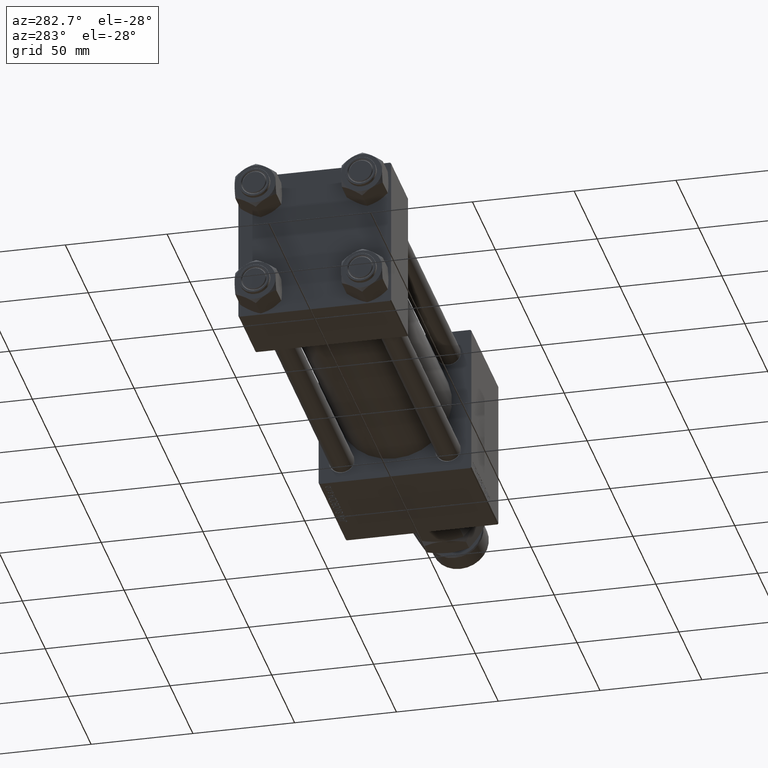
[diagram: clean part render]
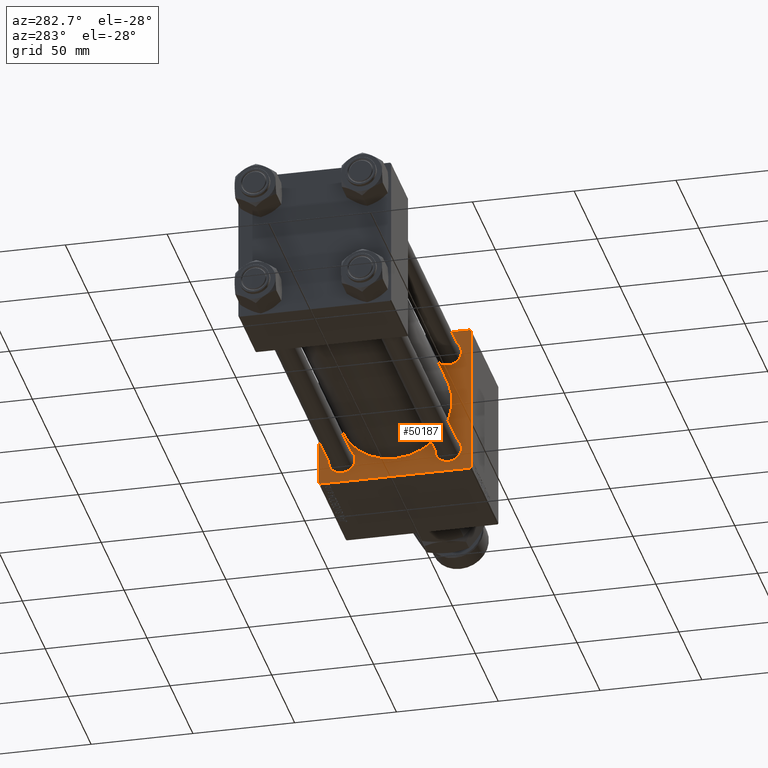
[diagram: same view with one face highlighted and labeled with its STEP entity id]
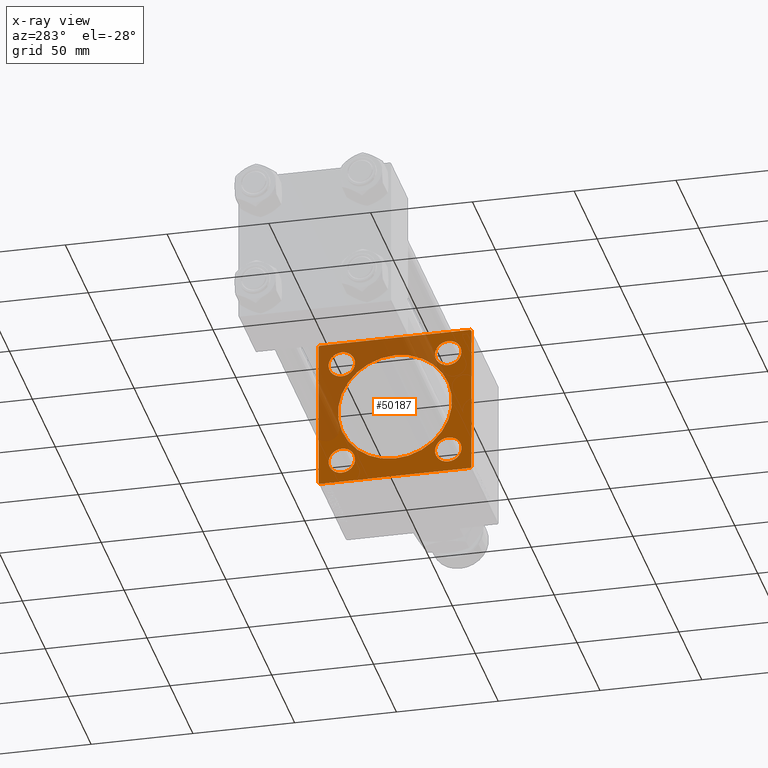
[diagram: x-ray of the same camera — body ghosted, the highlighted face saturated]
A machine part, auxiliary view. The second image highlights one B-rep face of the part: STEP entity #50187.
The next image is the same camera in x-ray: the body ghosted, the highlighted face saturated — about 38% of this face is hidden behind the body in this view.
In plain terms, the highlighted planar face has unit normal (-1, 0, 0).
Its self-contained STEP definition (entity closure, byte-faithful):
#744 = FACE_BOUND ( 'NONE', #46339, .T. ) ;
#1229 = DIRECTION ( 'NONE',  ( 1.000000000000000000, 0.000000000000000000, 0.000000000000000000 ) ) ;
#1258 = DIRECTION ( 'NONE',  ( 0.000000000000000000, 0.000000000000000000, 1.000000000000000000 ) ) ;
#1579 = CARTESIAN_POINT ( 'NONE',  ( 175.0000000000000284, 37.50000000000000000, -37.50000000000000000 ) ) ;
#1678 = DIRECTION ( 'NONE',  ( 0.000000000000000000, 0.000000000000000000, -1.000000000000000000 ) ) ;
#1789 = VECTOR ( 'NONE', #27414, 1000.000000000000000 ) ;
#1898 = VERTEX_POINT ( 'NONE', #45320 ) ;
#2136 = EDGE_CURVE ( 'NONE', #14635, #37250, #11148, .T. ) ;
#2279 = DIRECTION ( 'NONE',  ( 1.000000000000000000, 0.000000000000000000, -0.000000000000000000 ) ) ;
#2577 = CARTESIAN_POINT ( 'NONE',  ( 175.0000000000000284, 37.50000000000000000, -37.00000000000002132 ) ) ;
#2635 = CARTESIAN_POINT ( 'NONE',  ( 175.0000000000000284, 26.14999999999999858, 19.64999999999999147 ) ) ;
#2747 = VERTEX_POINT ( 'NONE', #20896 ) ;
#2760 = CARTESIAN_POINT ( 'NONE',  ( 175.0000000000000284, -26.14999999999999147, -32.65000000000002700 ) ) ;
#4355 = VECTOR ( 'NONE', #32753, 1000.000000000000000 ) ;
#4941 = VECTOR ( 'NONE', #34669, 1000.000000000000000 ) ;
#5462 = EDGE_CURVE ( 'NONE', #48854, #29566, #29818, .T. ) ;
#5471 = FACE_BOUND ( 'NONE', #32989, .T. ) ;
#5518 = LINE ( 'NONE', #20590, #52096 ) ;
#5666 = CARTESIAN_POINT ( 'NONE',  ( 175.0000000000000284, -26.14999999999999147, -19.64999999999999503 ) ) ;
#6500 = DIRECTION ( 'NONE',  ( 0.000000000000000000, 0.000000000000000000, 1.000000000000000000 ) ) ;
#6659 = AXIS2_PLACEMENT_3D ( 'NONE', #26437, #41972, #26950 ) ;
#7054 = AXIS2_PLACEMENT_3D ( 'NONE', #45271, #1229, #17329 ) ;
#7234 = CIRCLE ( 'NONE', #51019, 6.500000000000015987 ) ;
#8729 = ORIENTED_EDGE ( 'NONE', *, *, #19346, .F. ) ;
#8912 = DIRECTION ( 'NONE',  ( 1.000000000000000000, 0.000000000000000000, -0.000000000000000000 ) ) ;
#9000 = CARTESIAN_POINT ( 'NONE',  ( 175.0000000000000284, 37.24999999999922551, -37.25000000000078160 ) ) ;
#9175 = DIRECTION ( 'NONE',  ( 1.000000000000000000, 0.000000000000000000, -0.000000000000000000 ) ) ;
#9485 = ORIENTED_EDGE ( 'NONE', *, *, #20963, .T. ) ;
#9548 = CARTESIAN_POINT ( 'NONE',  ( 175.0000000000000284, -37.25000000000103739, -37.24999999999896971 ) ) ;
#9691 = CARTESIAN_POINT ( 'NONE',  ( 175.0000000000000284, 26.14999999999999858, -26.15000000000000213 ) ) ;
#10067 = LINE ( 'NONE', #9548, #21657 ) ;
#10426 = EDGE_CURVE ( 'NONE', #2747, #31884, #13564, .T. ) ;
#10657 = EDGE_CURVE ( 'NONE', #1898, #44416, #7234, .T. ) ;
#11148 = CIRCLE ( 'NONE', #19567, 6.500000000000015987 ) ;
#12067 = CARTESIAN_POINT ( 'NONE',  ( 175.0000000000000284, -37.50000000000000711, -36.99999999999997868 ) ) ;
#12895 = CARTESIAN_POINT ( 'NONE',  ( 175.0000000000000284, 0.000000000000000000, 0.000000000000000000 ) ) ;
#12966 = DIRECTION ( 'NONE',  ( 0.000000000000000000, -9.251858538542972814E-17, -1.000000000000000000 ) ) ;
#13388 = DIRECTION ( 'NONE',  ( 0.000000000000000000, 0.000000000000000000, 1.000000000000000000 ) ) ;
#13480 = LINE ( 'NONE', #9000, #4355 ) ;
#13564 = LINE ( 'NONE', #22002, #24076 ) ;
#13703 = VERTEX_POINT ( 'NONE', #5666 ) ;
#14635 = VERTEX_POINT ( 'NONE', #48361 ) ;
#14713 = VERTEX_POINT ( 'NONE', #37052 ) ;
#15942 = CIRCLE ( 'NONE', #37020, 6.500000000000015987 ) ;
#16015 = DIRECTION ( 'NONE',  ( 0.000000000000000000, 0.000000000000000000, 1.000000000000000000 ) ) ;
#16032 = EDGE_CURVE ( 'NONE', #34084, #44045, #10067, .T. ) ;
#16688 = DIRECTION ( 'NONE',  ( 0.000000000000000000, 0.000000000000000000, 1.000000000000000000 ) ) ;
#17291 = EDGE_LOOP ( 'NONE', ( #48781, #42521, #19336, #50539, #8729, #33054, #28297, #44016 ) ) ;
#17329 = DIRECTION ( 'NONE',  ( 0.000000000000000000, 0.000000000000000000, -1.000000000000000000 ) ) ;
#17397 = DIRECTION ( 'NONE',  ( 1.000000000000000000, 0.000000000000000000, -0.000000000000000000 ) ) ;
#17424 = CARTESIAN_POINT ( 'NONE',  ( 175.0000000000000284, -37.50000000000000000, 37.49999999999997868 ) ) ;
#18445 = CARTESIAN_POINT ( 'NONE',  ( 175.0000000000000284, -26.14999999999999147, 26.15000000000000924 ) ) ;
#18516 = EDGE_LOOP ( 'NONE', ( #46303, #49891 ) ) ;
#19099 = DIRECTION ( 'NONE',  ( 1.000000000000000000, 0.000000000000000000, 0.000000000000000000 ) ) ;
#19336 = ORIENTED_EDGE ( 'NONE', *, *, #27789, .F. ) ;
#19346 = EDGE_CURVE ( 'NONE', #30717, #40705, #34135, .T. ) ;
#19567 = AXIS2_PLACEMENT_3D ( 'NONE', #32365, #24707, #16015 ) ;
#20384 = CARTESIAN_POINT ( 'NONE',  ( 175.0000000000000284, -26.14999999999999147, 26.15000000000000924 ) ) ;
#20567 = ORIENTED_EDGE ( 'NONE', *, *, #39134, .T. ) ;
#20590 = CARTESIAN_POINT ( 'NONE',  ( 175.0000000000000284, -37.24999999999896261, 37.25000000000102318 ) ) ;
#20684 = EDGE_CURVE ( 'NONE', #30030, #40705, #5518, .T. ) ;
#20896 = CARTESIAN_POINT ( 'NONE',  ( 175.0000000000000284, 37.50000000000000000, 36.99999999999999289 ) ) ;
#20963 = EDGE_CURVE ( 'NONE', #30691, #30832, #36017, .T. ) ;
#21046 = CARTESIAN_POINT ( 'NONE',  ( 175.0000000000000284, 26.14999999999999858, 26.15000000000000213 ) ) ;
#21053 = EDGE_CURVE ( 'NONE', #34942, #13703, #34324, .T. ) ;
#21110 = DIRECTION ( 'NONE',  ( -0.000000000000000000, 0.7071067811865671127, 0.7071067811865279218 ) ) ;
#21209 = EDGE_LOOP ( 'NONE', ( #25949, #49008 ) ) ;
#21534 = ORIENTED_EDGE ( 'NONE', *, *, #21610, .T. ) ;
#21610 = EDGE_CURVE ( 'NONE', #13703, #34942, #32694, .T. ) ;
#21657 = VECTOR ( 'NONE', #42229, 1000.000000000000000 ) ;
#22002 = CARTESIAN_POINT ( 'NONE',  ( 175.0000000000000284, 37.50000000000000000, 37.49999999999999289 ) ) ;
#23453 = CARTESIAN_POINT ( 'NONE',  ( 175.0000000000000284, -37.50000000000000000, 37.00000000000000711 ) ) ;
#24076 = VECTOR ( 'NONE', #1678, 1000.000000000000000 ) ;
#24549 = VECTOR ( 'NONE', #46671, 1000.000000000000000 ) ;
#24707 = DIRECTION ( 'NONE',  ( 1.000000000000000000, 0.000000000000000000, -0.000000000000000000 ) ) ;
#24888 = EDGE_CURVE ( 'NONE', #30832, #30691, #52129, .T. ) ;
#25263 = DIRECTION ( 'NONE',  ( 0.000000000000000000, 0.000000000000000000, 1.000000000000000000 ) ) ;
#25599 = AXIS2_PLACEMENT_3D ( 'NONE', #9691, #9175, #25263 ) ;
#25783 = FACE_BOUND ( 'NONE', #18516, .T. ) ;
#25949 = ORIENTED_EDGE ( 'NONE', *, *, #49643, .T. ) ;
#26006 = CIRCLE ( 'NONE', #36984, 28.00000000000000000 ) ;
#26437 = CARTESIAN_POINT ( 'NONE',  ( 175.0000000000000284, 26.14999999999999858, 26.15000000000000213 ) ) ;
#26910 = CARTESIAN_POINT ( 'NONE',  ( 175.0000000000000284, 37.25000000000103739, 37.24999999999896971 ) ) ;
#26950 = DIRECTION ( 'NONE',  ( 0.000000000000000000, 0.000000000000000000, 1.000000000000000000 ) ) ;
#27414 = DIRECTION ( 'NONE',  ( 0.000000000000000000, 0.7071067811865279218, -0.7071067811865671127 ) ) ;
#27789 = EDGE_CURVE ( 'NONE', #30030, #44045, #49588, .T. ) ;
#27880 = ORIENTED_EDGE ( 'NONE', *, *, #2136, .T. ) ;
#28297 = ORIENTED_EDGE ( 'NONE', *, *, #10426, .T. ) ;
#28400 = EDGE_LOOP ( 'NONE', ( #42567, #9485 ) ) ;
#28434 = DIRECTION ( 'NONE',  ( 0.000000000000000000, 0.000000000000000000, 1.000000000000000000 ) ) ;
#29304 = CARTESIAN_POINT ( 'NONE',  ( 175.0000000000000284, -37.00000000000000000, 37.49999999999997868 ) ) ;
#29566 = VERTEX_POINT ( 'NONE', #41995 ) ;
#29818 = CIRCLE ( 'NONE', #7054, 28.00000000000000000 ) ;
#29913 = EDGE_CURVE ( 'NONE', #14713, #34084, #37485, .T. ) ;
#29981 = ORIENTED_EDGE ( 'NONE', *, *, #21053, .T. ) ;
#30030 = VERTEX_POINT ( 'NONE', #23453 ) ;
#30035 = EDGE_CURVE ( 'NONE', #30717, #2747, #35090, .T. ) ;
#30098 = CARTESIAN_POINT ( 'NONE',  ( 175.0000000000000284, 37.00000000000002842, 37.49999999999999289 ) ) ;
#30691 = VERTEX_POINT ( 'NONE', #2635 ) ;
#30699 = CIRCLE ( 'NONE', #25599, 6.500000000000015987 ) ;
#30717 = VERTEX_POINT ( 'NONE', #30098 ) ;
#30832 = VERTEX_POINT ( 'NONE', #51920 ) ;
#31002 = AXIS2_PLACEMENT_3D ( 'NONE', #32657, #37649, #28434 ) ;
#31165 = AXIS2_PLACEMENT_3D ( 'NONE', #12895, #37414, #1258 ) ;
#31341 = CARTESIAN_POINT ( 'NONE',  ( 175.0000000000000284, -2.602085213965210642E-15, 28.00000000000000000 ) ) ;
#31884 = VERTEX_POINT ( 'NONE', #2577 ) ;
#32365 = CARTESIAN_POINT ( 'NONE',  ( 175.0000000000000284, 26.14999999999999858, -26.15000000000000213 ) ) ;
#32657 = CARTESIAN_POINT ( 'NONE',  ( 175.0000000000000284, -26.14999999999999147, -26.15000000000000924 ) ) ;
#32694 = CIRCLE ( 'NONE', #31002, 6.500000000000015987 ) ;
#32753 = DIRECTION ( 'NONE',  ( -0.000000000000000000, -0.7071067811865622277, -0.7071067811865328068 ) ) ;
#32989 = EDGE_LOOP ( 'NONE', ( #21534, #29981 ) ) ;
#33054 = ORIENTED_EDGE ( 'NONE', *, *, #30035, .T. ) ;
#34084 = VERTEX_POINT ( 'NONE', #46793 ) ;
#34135 = LINE ( 'NONE', #51225, #4941 ) ;
#34216 = CARTESIAN_POINT ( 'NONE',  ( 175.0000000000000284, -26.14999999999999147, -26.15000000000000924 ) ) ;
#34324 = CIRCLE ( 'NONE', #47762, 6.500000000000015987 ) ;
#34548 = DIRECTION ( 'NONE',  ( 0.000000000000000000, 0.000000000000000000, 1.000000000000000000 ) ) ;
#34583 = EDGE_CURVE ( 'NONE', #31884, #14713, #13480, .T. ) ;
#34669 = DIRECTION ( 'NONE',  ( 0.000000000000000000, -1.000000000000000000, -1.850371707708594316E-16 ) ) ;
#34942 = VERTEX_POINT ( 'NONE', #2760 ) ;
#35090 = LINE ( 'NONE', #26910, #1789 ) ;
#35127 = CARTESIAN_POINT ( 'NONE',  ( 175.0000000000000284, 26.14999999999999858, -19.64999999999998792 ) ) ;
#35463 = DIRECTION ( 'NONE',  ( 0.000000000000000000, 0.000000000000000000, -1.000000000000000000 ) ) ;
#36017 = CIRCLE ( 'NONE', #39387, 6.500000000000008882 ) ;
#36482 = DIRECTION ( 'NONE',  ( 1.000000000000000000, 0.000000000000000000, -0.000000000000000000 ) ) ;
#36984 = AXIS2_PLACEMENT_3D ( 'NONE', #51253, #19099, #35463 ) ;
#37020 = AXIS2_PLACEMENT_3D ( 'NONE', #18445, #17397, #34548 ) ;
#37052 = CARTESIAN_POINT ( 'NONE',  ( 175.0000000000000284, 37.00000000000000000, -37.50000000000000000 ) ) ;
#37159 = FACE_BOUND ( 'NONE', #28400, .T. ) ;
#37250 = VERTEX_POINT ( 'NONE', #35127 ) ;
#37414 = DIRECTION ( 'NONE',  ( -1.000000000000000000, -0.000000000000000000, 0.000000000000000000 ) ) ;
#37485 = LINE ( 'NONE', #1579, #24549 ) ;
#37649 = DIRECTION ( 'NONE',  ( 1.000000000000000000, 0.000000000000000000, -0.000000000000000000 ) ) ;
#37663 = FACE_BOUND ( 'NONE', #21209, .T. ) ;
#39134 = EDGE_CURVE ( 'NONE', #37250, #14635, #30699, .T. ) ;
#39387 = AXIS2_PLACEMENT_3D ( 'NONE', #21046, #8912, #13388 ) ;
#40705 = VERTEX_POINT ( 'NONE', #29304 ) ;
#41972 = DIRECTION ( 'NONE',  ( 1.000000000000000000, 0.000000000000000000, -0.000000000000000000 ) ) ;
#41995 = CARTESIAN_POINT ( 'NONE',  ( 175.0000000000000284, 8.269258236473784371E-16, -28.00000000000000000 ) ) ;
#42229 = DIRECTION ( 'NONE',  ( 0.000000000000000000, -0.7071067811865279218, 0.7071067811865671127 ) ) ;
#42521 = ORIENTED_EDGE ( 'NONE', *, *, #16032, .T. ) ;
#42567 = ORIENTED_EDGE ( 'NONE', *, *, #24888, .T. ) ;
#42998 = VECTOR ( 'NONE', #12966, 1000.000000000000000 ) ;
#43927 = EDGE_CURVE ( 'NONE', #29566, #48854, #26006, .T. ) ;
#44016 = ORIENTED_EDGE ( 'NONE', *, *, #34583, .T. ) ;
#44045 = VERTEX_POINT ( 'NONE', #12067 ) ;
#44416 = VERTEX_POINT ( 'NONE', #51805 ) ;
#45271 = CARTESIAN_POINT ( 'NONE',  ( 175.0000000000000284, -2.602085213965210642E-15, 0.000000000000000000 ) ) ;
#45320 = CARTESIAN_POINT ( 'NONE',  ( 175.0000000000000284, -26.14999999999999147, 19.64999999999999147 ) ) ;
#45555 = PLANE ( 'NONE',  #31165 ) ;
#46303 = ORIENTED_EDGE ( 'NONE', *, *, #5462, .T. ) ;
#46339 = EDGE_LOOP ( 'NONE', ( #20567, #27880 ) ) ;
#46671 = DIRECTION ( 'NONE',  ( 0.000000000000000000, -1.000000000000000000, 0.000000000000000000 ) ) ;
#46793 = CARTESIAN_POINT ( 'NONE',  ( 175.0000000000000284, -37.00000000000001421, -37.50000000000000000 ) ) ;
#47762 = AXIS2_PLACEMENT_3D ( 'NONE', #34216, #2279, #6500 ) ;
#48361 = CARTESIAN_POINT ( 'NONE',  ( 175.0000000000000284, 26.14999999999999858, -32.65000000000001990 ) ) ;
#48781 = ORIENTED_EDGE ( 'NONE', *, *, #29913, .T. ) ;
#48854 = VERTEX_POINT ( 'NONE', #31341 ) ;
#49008 = ORIENTED_EDGE ( 'NONE', *, *, #10657, .T. ) ;
#49516 = FACE_OUTER_BOUND ( 'NONE', #17291, .T. ) ;
#49588 = LINE ( 'NONE', #17424, #42998 ) ;
#49643 = EDGE_CURVE ( 'NONE', #44416, #1898, #15942, .T. ) ;
#49891 = ORIENTED_EDGE ( 'NONE', *, *, #43927, .T. ) ;
#50187 = ADVANCED_FACE ( 'NONE', ( #37663, #37159, #744, #5471, #25783, #49516 ), #45555, .T. ) ;
#50539 = ORIENTED_EDGE ( 'NONE', *, *, #20684, .T. ) ;
#51019 = AXIS2_PLACEMENT_3D ( 'NONE', #20384, #36482, #16688 ) ;
#51225 = CARTESIAN_POINT ( 'NONE',  ( 175.0000000000000284, 37.50000000000000000, 37.49999999999999289 ) ) ;
#51253 = CARTESIAN_POINT ( 'NONE',  ( 175.0000000000000284, -2.602085213965210642E-15, 0.000000000000000000 ) ) ;
#51805 = CARTESIAN_POINT ( 'NONE',  ( 175.0000000000000284, -26.14999999999999147, 32.65000000000003411 ) ) ;
#51920 = CARTESIAN_POINT ( 'NONE',  ( 175.0000000000000284, 26.14999999999999858, 32.65000000000001990 ) ) ;
#52096 = VECTOR ( 'NONE', #21110, 1000.000000000000000 ) ;
#52129 = CIRCLE ( 'NONE', #6659, 6.500000000000008882 ) ;